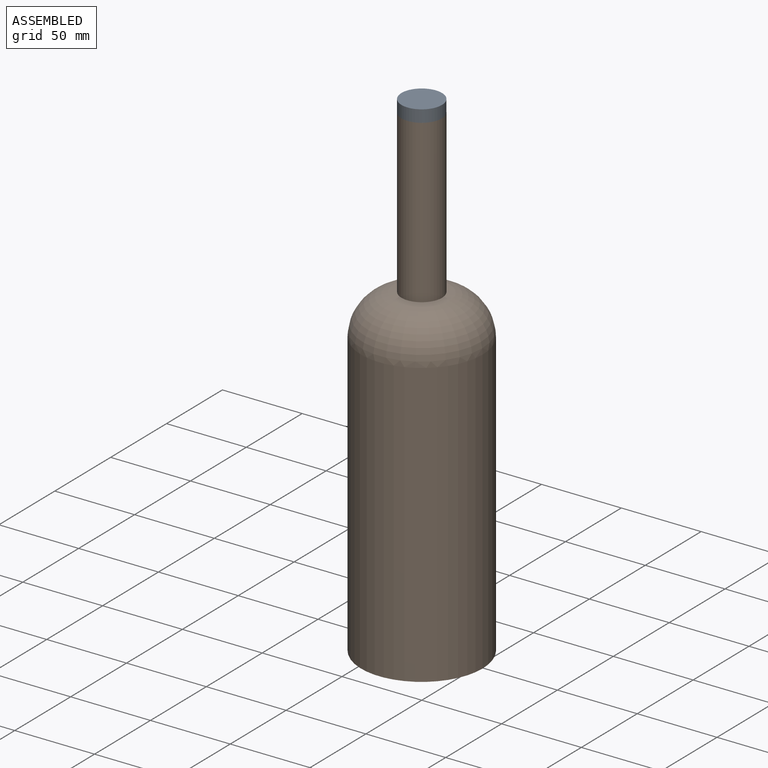
[diagram: assembled view]
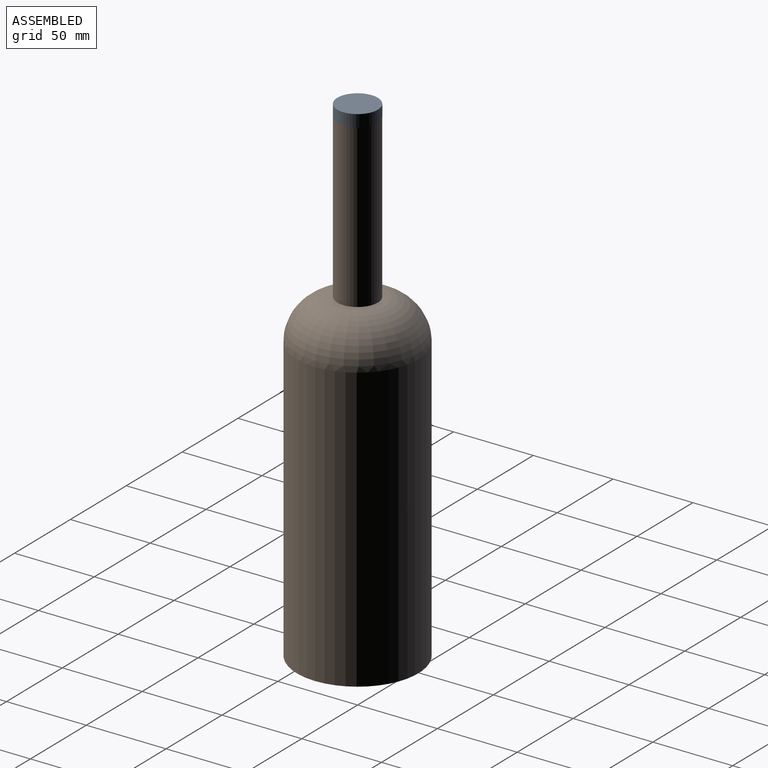
[diagram: assembled view, second angle]
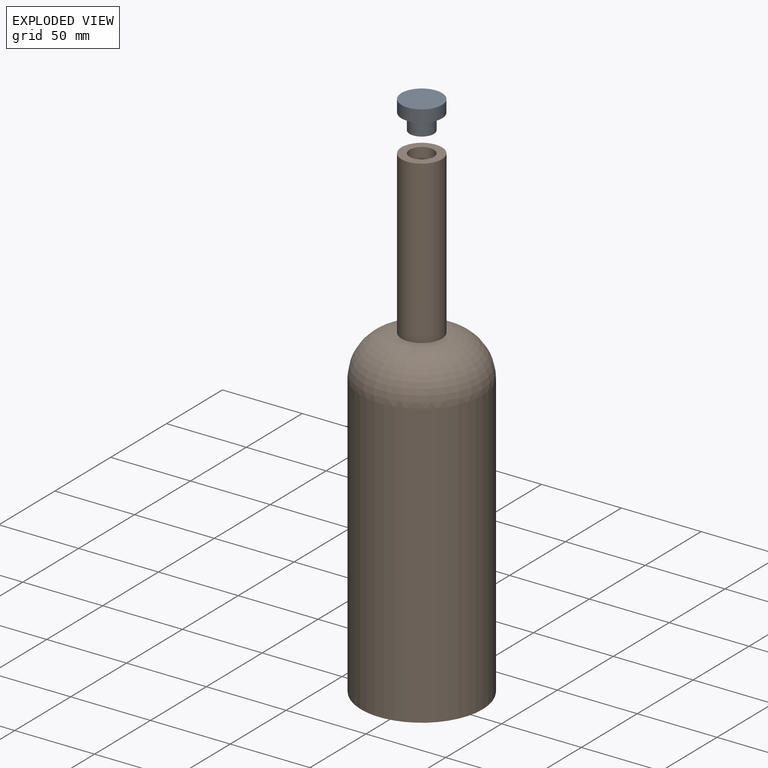
[diagram: exploded view]
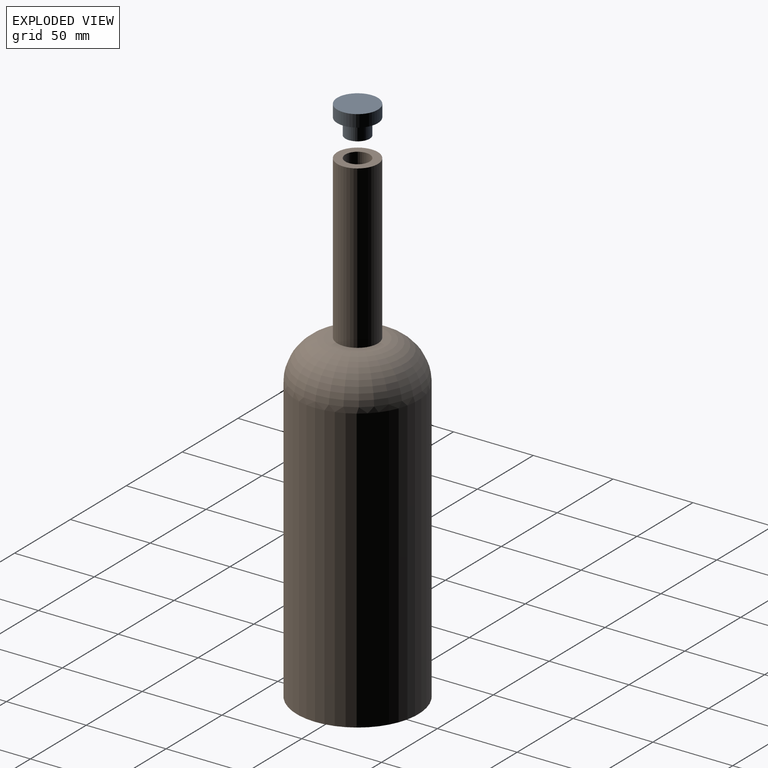
[diagram: exploded view, second angle]
ASSEMBLY  parts=2 mates=2
PART A: 5 faces, bbox 25.4x25.4x17.8 mm
  f0: plane 15.24x15.24mm, normal (0,0,-1), area 182.4mm2, adj f1
  f1: cylinder r=7.62mm len=15.24mm, axis (0,0,1), area 486.4mm2, adj f0,f2
  f2: plane 25.4x25.4mm, normal (0,0,-1), area 324.3mm2, adj f1,f3
  f3: cylinder r=12.7mm len=25.4mm, axis (0,0,1), area 608mm2, adj f2,f4
  f4: plane 25.4x25.4mm, normal (0,0,1), area 506.7mm2, adj f3
PART B: 9 faces, bbox 76.2x76.2x304.8 mm
  f0: plane 76.2x76.2mm, normal (0,0,-1), area 4560.4mm2, adj f1
  f1: cylinder r=38.1mm len=177.8mm, axis (0,0,1), area 42563.4mm2, adj f0,f2
  f2: torus R=12.7mm, axis (0,0,1), area 7237.4mm2, adj f1,f3
  f3: cylinder r=12.7mm len=101.6mm, axis (0,0,1), area 8107.3mm2, adj f2,f4
  f4: plane 25.4x25.4mm, normal (0,0,1), area 324.3mm2, adj f3,f8
  f5: plane 66.04x66.04mm, normal (0,0,1), area 3425.3mm2, adj f6
  f6: cylinder r=33.02mm len=172.72mm, axis (0,0,1), area 35834.4mm2, adj f5,f7
  f7: torus R=12.7mm, axis (0,0,1), area 5468.7mm2, adj f6,f8
  f8: cylinder r=7.62mm len=107.33mm, axis (0,0,1), area 5138.5mm2, adj f4,f7
PLACE A t=(0,0,299.72)mm
PLACE B t=(0,0,5.08)mm
MATE cylindrical A.f1 <-> B.f1  axis (0,0,1) through (0,0,304.8)mm
MATE planar B.f1 <-> A.f1  axis (0,0,1) through (0,0,309.88)mm
